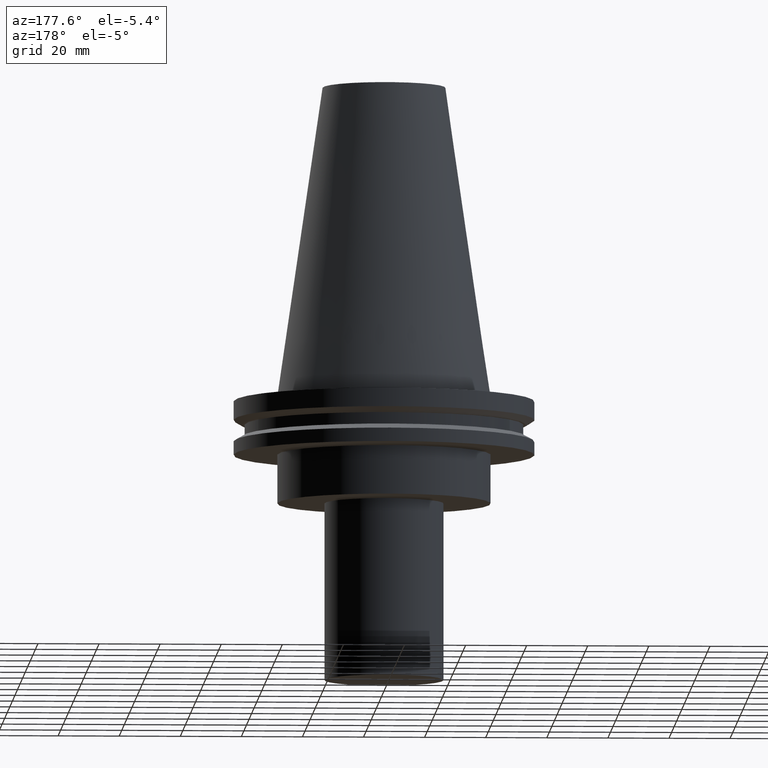
[diagram: clean part render]
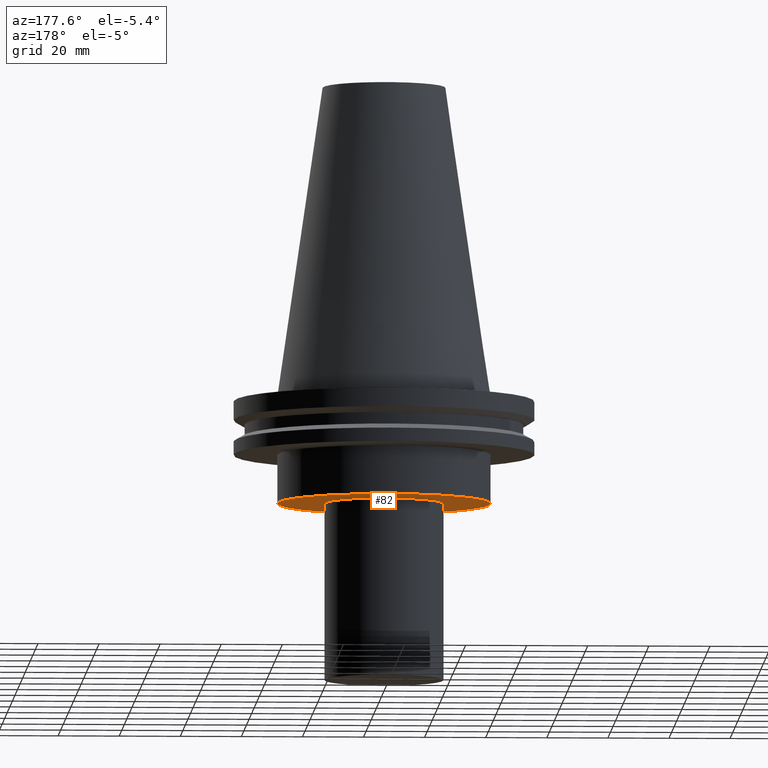
[diagram: same view with one face highlighted and labeled with its STEP entity id]
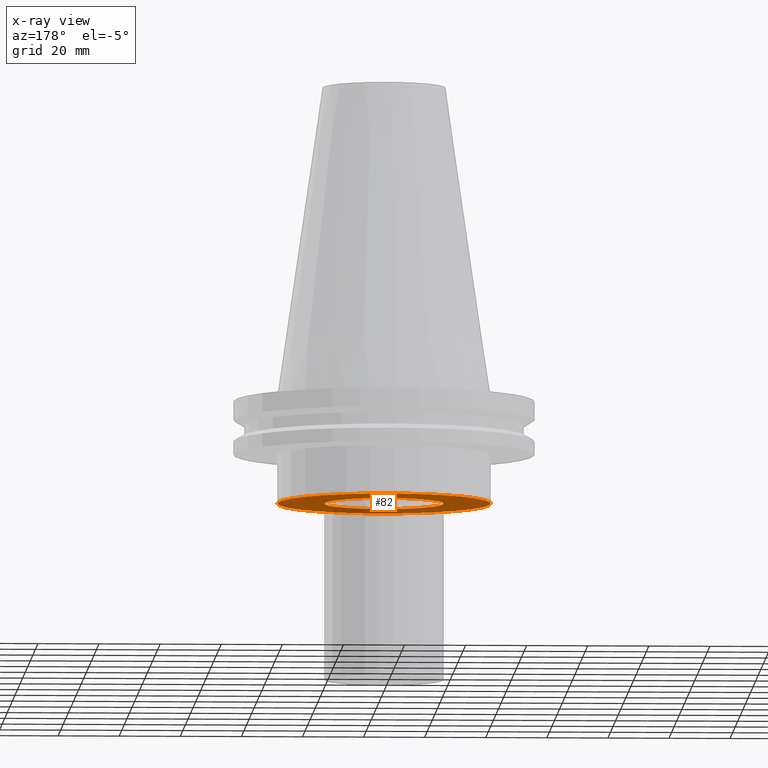
[diagram: x-ray of the same camera — body ghosted, the highlighted face saturated]
A machine part, auxiliary view. The second image highlights one B-rep face of the part: STEP entity #82.
The next image is the same camera in x-ray: the body ghosted, the highlighted face saturated — about 23% of this face is hidden behind the body in this view.
In plain terms, the highlighted planar face has unit normal (0, -0, 1).
Its self-contained STEP definition (entity closure, byte-faithful):
#14 = DIRECTION ( 'NONE',  ( 1.000000000000000000, 0.000000000000000000, 0.000000000000000000 ) ) ;
#15 = EDGE_CURVE ( 'NONE', #117, #117, #210, .T. ) ;
#18 = DIRECTION ( 'NONE',  ( 1.000000000000000000, 0.000000000000000000, 0.000000000000000000 ) ) ;
#23 = VERTEX_POINT ( 'NONE', #114 ) ;
#39 = FACE_BOUND ( 'NONE', #60, .T. ) ;
#44 = CARTESIAN_POINT ( 'NONE',  ( 0.000000000000000000, 34.92499999999999716, -35.00000000000000000 ) ) ;
#46 = DIRECTION ( 'NONE',  ( 0.000000000000000000, -0.000000000000000000, 1.000000000000000000 ) ) ;
#55 = ORIENTED_EDGE ( 'NONE', *, *, #15, .F. ) ;
#60 = EDGE_LOOP ( 'NONE', ( #269 ) ) ;
#82 = ADVANCED_FACE ( 'NONE', ( #39, #244 ), #96, .F. ) ;
#89 = AXIS2_PLACEMENT_3D ( 'NONE', #292, #228, #18 ) ;
#96 = PLANE ( 'NONE',  #319 ) ;
#114 = CARTESIAN_POINT ( 'NONE',  ( 19.50000000000000000, 0.000000000000000000, -35.00000000000000000 ) ) ;
#117 = VERTEX_POINT ( 'NONE', #174 ) ;
#174 = CARTESIAN_POINT ( 'NONE',  ( 34.92499999999999716, 0.000000000000000000, -35.00000000000000000 ) ) ;
#184 = DIRECTION ( 'NONE',  ( -0.000000000000000000, -0.000000000000000000, 1.000000000000000000 ) ) ;
#210 = CIRCLE ( 'NONE', #254, 34.92499999999999716 ) ;
#227 = EDGE_CURVE ( 'NONE', #23, #23, #365, .T. ) ;
#228 = DIRECTION ( 'NONE',  ( -0.000000000000000000, -0.000000000000000000, 1.000000000000000000 ) ) ;
#236 = EDGE_LOOP ( 'NONE', ( #55 ) ) ;
#244 = FACE_OUTER_BOUND ( 'NONE', #236, .T. ) ;
#254 = AXIS2_PLACEMENT_3D ( 'NONE', #339, #184, #281 ) ;
#269 = ORIENTED_EDGE ( 'NONE', *, *, #227, .T. ) ;
#281 = DIRECTION ( 'NONE',  ( 1.000000000000000000, 0.000000000000000000, 0.000000000000000000 ) ) ;
#292 = CARTESIAN_POINT ( 'NONE',  ( 0.000000000000000000, 0.000000000000000000, -35.00000000000000000 ) ) ;
#319 = AXIS2_PLACEMENT_3D ( 'NONE', #44, #46, #14 ) ;
#339 = CARTESIAN_POINT ( 'NONE',  ( 0.000000000000000000, 0.000000000000000000, -35.00000000000000000 ) ) ;
#365 = CIRCLE ( 'NONE', #89, 19.50000000000000000 ) ;